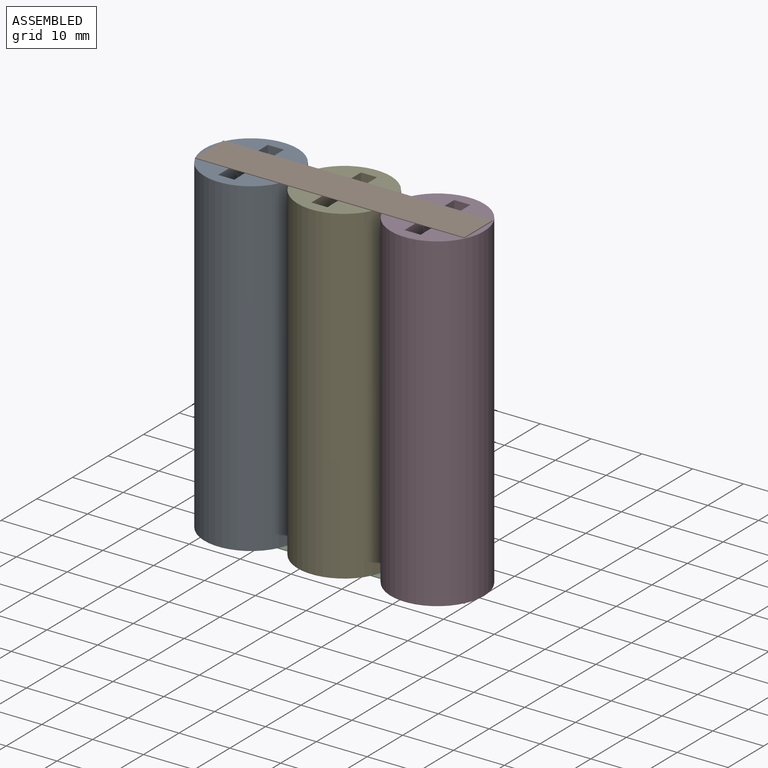
[diagram: assembled view]
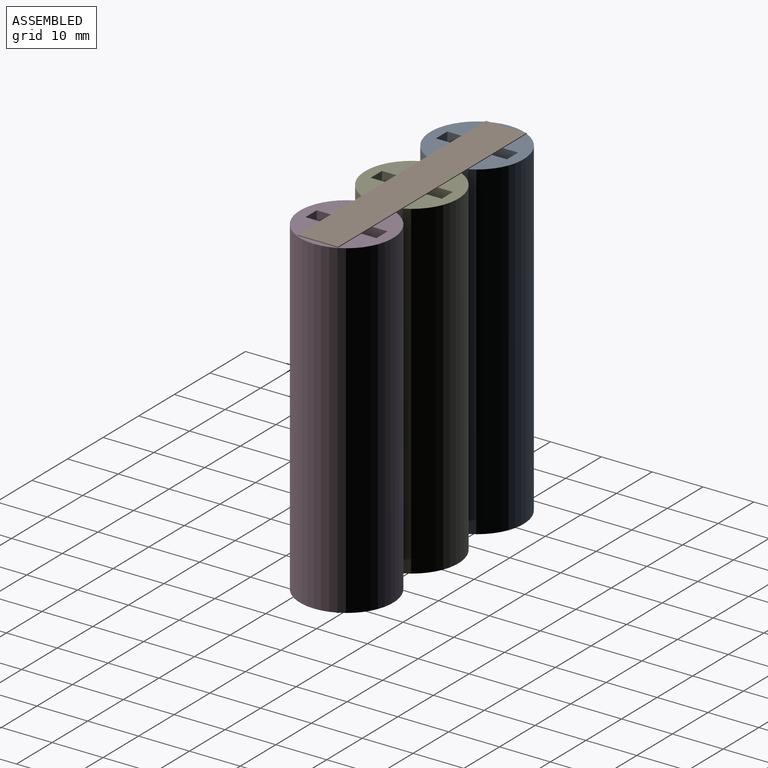
[diagram: assembled view, second angle]
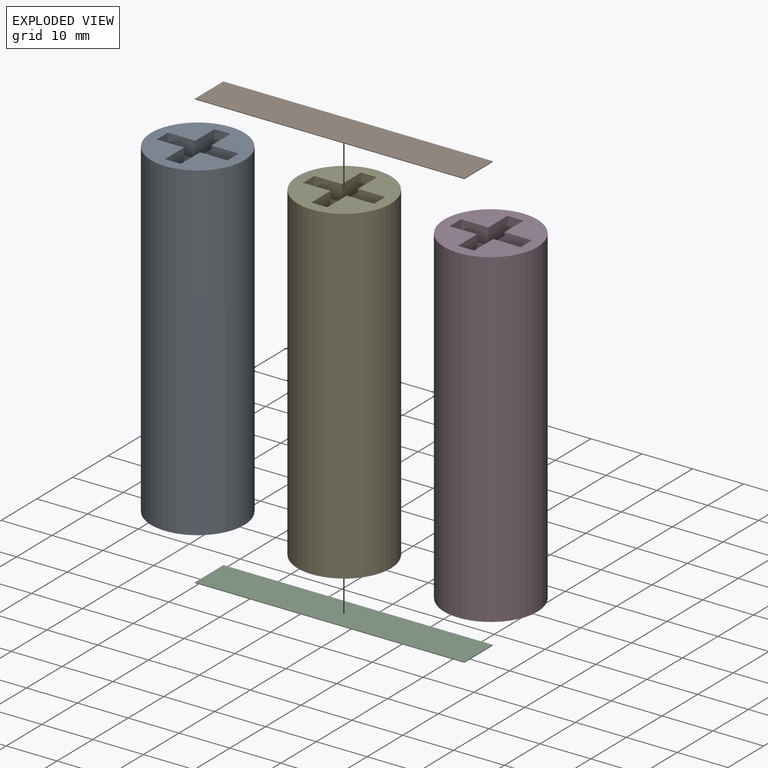
[diagram: exploded view]
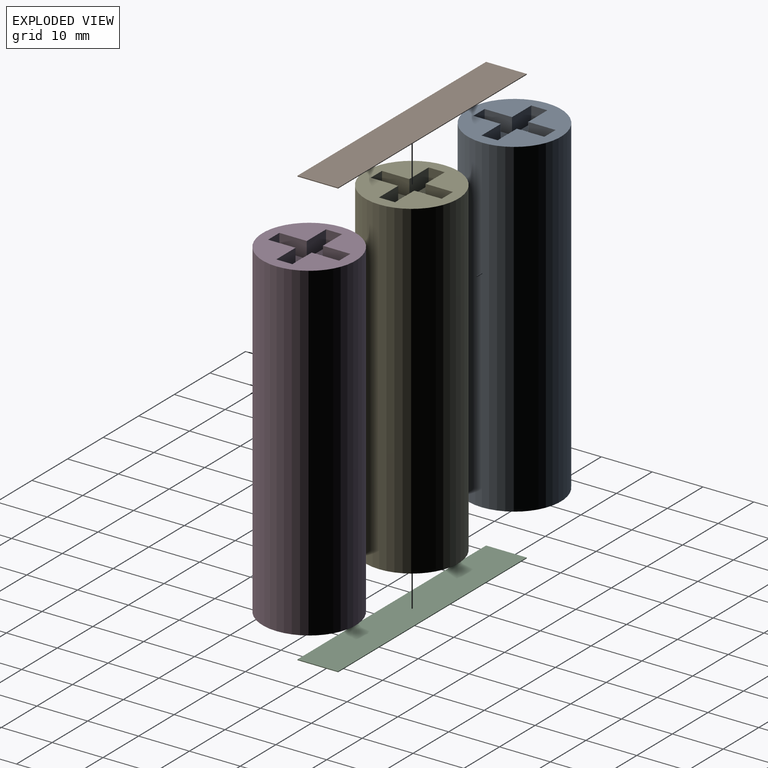
[diagram: exploded view, second angle]
ASSEMBLY  parts=5 mates=2
PART A: 16 faces, bbox 18.3x18.3x64.9 mm
  f0: plane 18.33x18.33mm, normal (0,0,1), area 185.3mm2, adj f1,f3,f4,f5,f6,f7,f8,f9
  f1: cylinder r=9.16mm len=64.85mm, axis (0,0,-1), area 3734.4mm2, adj f0,f2
  f2: plane 18.33x18.33mm, normal (0,0,-1), area 263.9mm2, adj f1
  f3: plane 5.4x3.18mm, normal (0,1,0), area 17.1mm2, adj f0,f4,f14,f15
  f4: plane 5.4x3.18mm, normal (1,0,0), area 17.1mm2, adj f0,f3,f5,f15
  f5: plane 3.18x3.18mm, normal (0,1,0), area 10.1mm2, adj f0,f4,f6,f15
  f6: plane 5.4x3.18mm, normal (-1,0,0), area 17.1mm2, adj f0,f5,f7,f15
  f7: plane 5.4x3.18mm, normal (0,1,0), area 17.1mm2, adj f0,f6,f8,f15
  f8: plane 3.18x3.18mm, normal (-1,0,0), area 10.1mm2, adj f0,f7,f9,f15
  f9: plane 5.4x3.18mm, normal (0,-1,0), area 17.1mm2, adj f0,f8,f10,f15
  f10: plane 5.4x3.18mm, normal (-1,0,0), area 17.1mm2, adj f0,f9,f11,f15
  f11: plane 3.18x3.18mm, normal (0,-1,0), area 10.1mm2, adj f0,f10,f12,f15
  f12: plane 5.4x3.18mm, normal (1,0,0), area 17.1mm2, adj f0,f11,f13,f15
  f13: plane 5.4x3.18mm, normal (0,-1,0), area 17.1mm2, adj f0,f12,f14,f15
  f14: plane 3.18x3.18mm, normal (1,0,0), area 10.1mm2, adj f0,f3,f13,f15
  f15: plane 13.97x13.97mm, normal (0,0,1), area 78.6mm2, adj f3,f4,f5,f6,f7,f8,f9,f10
PART B: 6 faces, bbox 53x8x0.2 mm
  f0: plane 53x0.15mm, normal (0,1,0), area 7.9mm2, adj f1,f3,f4,f5
  f1: plane 8x0.15mm, normal (-1,0,0), area 1.2mm2, adj f0,f2,f4,f5
  f2: plane 53x0.15mm, normal (0,-1,0), area 7.9mm2, adj f1,f3,f4,f5
  f3: plane 8x0.15mm, normal (1,0,0), area 1.2mm2, adj f0,f2,f4,f5
  f4: plane 53x8mm, normal (0,0,1), area 424mm2, adj f0,f1,f2,f3
  f5: plane 53x8mm, normal (0,0,-1), area 424mm2, adj f0,f1,f2,f3
PART C: same geometry as B
PART D: same geometry as A
PART E: same geometry as A
PLACE A at identity fixed
PLACE B t=(9.16,0,32.42)mm
PLACE C rot(axis=(1,0,0),180deg) t=(9.16,0,-32.42)mm
PLACE D t=(36.66,0,0)mm
PLACE E t=(18.33,0,0)mm
MATE fastened C.f5 <-> A.f1  axis (0,0,-1) through (9.16,0,-32.42)mm
MATE fastened B.f5 <-> A.f1  axis (0,0,1) through (9.16,0,32.42)mm
